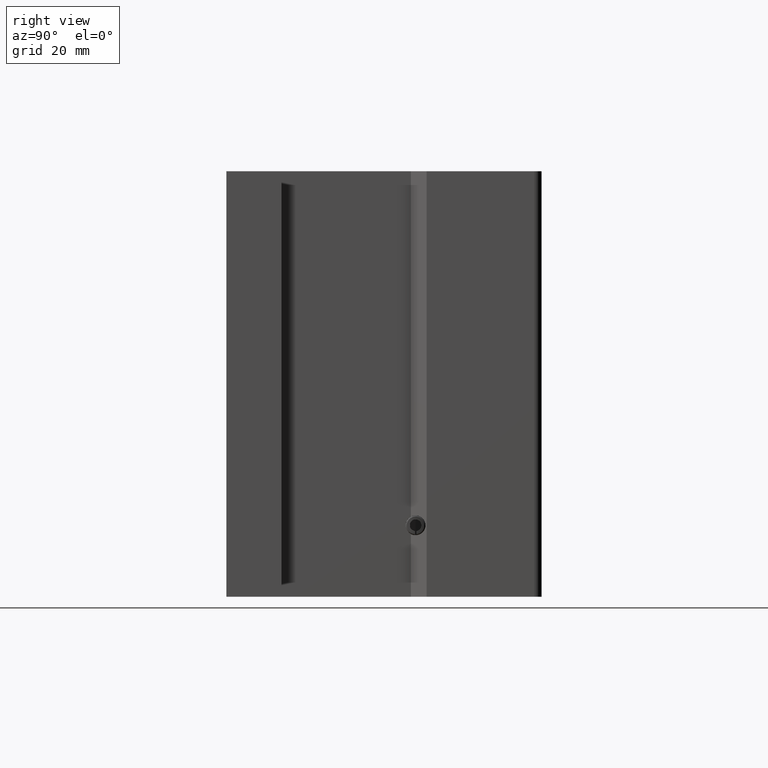
[diagram: clean part render]
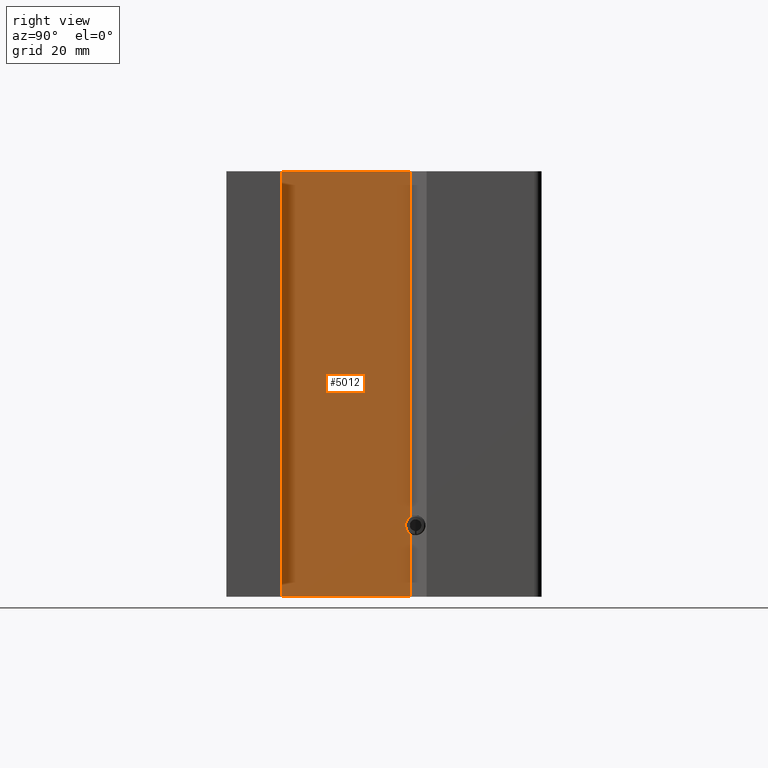
[diagram: same view with one face highlighted and labeled with its STEP entity id]
A machine part, right view. The second image highlights one B-rep face of the part: STEP entity #5012.
In plain terms, the highlighted planar face has unit normal (-1, 0, 0).
Its self-contained STEP definition (entity closure, byte-faithful):
#43 = VERTEX_POINT ( 'NONE', #3040 ) ;
#103 = LINE ( 'NONE', #2383, #3484 ) ;
#379 = LINE ( 'NONE', #4270, #7149 ) ;
#436 = EDGE_CURVE ( 'NONE', #6733, #43, #103, .T. ) ;
#1206 = VECTOR ( 'NONE', #3571, 39.37007874015748143 ) ;
#1226 = EDGE_CURVE ( 'NONE', #5859, #4932, #379, .T. ) ;
#1517 = DIRECTION ( 'NONE',  ( -1.000000000000000000, 0.000000000000000000, 0.000000000000000000 ) ) ;
#1538 = CARTESIAN_POINT ( 'NONE',  ( 1.499999999999999778, 0.000000000000000000, -1.121249999999999858 ) ) ;
#1737 = VECTOR ( 'NONE', #4206, 39.37007874015748143 ) ;
#1741 = DIRECTION ( 'NONE',  ( 0.000000000000000000, -1.000000000000000000, 0.000000000000000000 ) ) ;
#2383 = CARTESIAN_POINT ( 'NONE',  ( 1.499999999999999778, -0.03700000000000085859, -2.732006582075958256 ) ) ;
#2508 = FACE_OUTER_BOUND ( 'NONE', #3326, .T. ) ;
#2741 = CARTESIAN_POINT ( 'NONE',  ( 1.499999999999999778, -1.062999999999999501, -1.687500000000000000 ) ) ;
#2961 = DIRECTION ( 'NONE',  ( 0.000000000000000000, 0.000000000000000000, 1.000000000000000000 ) ) ;
#3016 = EDGE_CURVE ( 'NONE', #6733, #5181, #5240, .T. ) ;
#3040 = CARTESIAN_POINT ( 'NONE',  ( 1.499999999999999778, -0.03700000000000085859, -1.190483301235748970 ) ) ;
#3043 = CARTESIAN_POINT ( 'NONE',  ( 1.499999999999999778, 0.000000000000000000, -1.687500000000000000 ) ) ;
#3326 = EDGE_LOOP ( 'NONE', ( #3766, #7182, #6277, #4316, #4477, #7230 ) ) ;
#3484 = VECTOR ( 'NONE', #2961, 39.37007874015748143 ) ;
#3490 = CARTESIAN_POINT ( 'NONE',  ( 1.499999999999999778, -1.062999999999999501, -2.364883938398306462 ) ) ;
#3520 = LINE ( 'NONE', #3490, #1737 ) ;
#3571 = DIRECTION ( 'NONE',  ( 0.000000000000000000, 0.000000000000000000, 1.000000000000000000 ) ) ;
#3670 = AXIS2_PLACEMENT_3D ( 'NONE', #5875, #1517, #3770 ) ;
#3766 = ORIENTED_EDGE ( 'NONE', *, *, #5394, .F. ) ;
#3770 = DIRECTION ( 'NONE',  ( 0.000000000000000000, 0.000000000000000000, 1.000000000000000000 ) ) ;
#4206 = DIRECTION ( 'NONE',  ( 0.000000000000000000, 0.000000000000000000, 1.000000000000000000 ) ) ;
#4270 = CARTESIAN_POINT ( 'NONE',  ( 1.499999999999999778, 0.000000000000000000, 1.687500000000000000 ) ) ;
#4316 = ORIENTED_EDGE ( 'NONE', *, *, #7261, .F. ) ;
#4477 = ORIENTED_EDGE ( 'NONE', *, *, #3016, .F. ) ;
#4630 = CARTESIAN_POINT ( 'NONE',  ( 1.499999999999999778, -0.03700000000000085859, 1.687500000000000000 ) ) ;
#4731 = AXIS2_PLACEMENT_3D ( 'NONE', #1538, #6022, #4985 ) ;
#4858 = CIRCLE ( 'NONE', #4731, 0.07849999999999958400 ) ;
#4932 = VERTEX_POINT ( 'NONE', #6297 ) ;
#4985 = DIRECTION ( 'NONE',  ( 0.000000000000000000, 0.000000000000000000, 1.000000000000000000 ) ) ;
#5012 = ADVANCED_FACE ( 'NONE', ( #2508 ), #6549, .F. ) ;
#5181 = VERTEX_POINT ( 'NONE', #2741 ) ;
#5207 = CARTESIAN_POINT ( 'NONE',  ( 1.499999999999999778, -0.03700000000000085859, -2.732006582075958256 ) ) ;
#5240 = LINE ( 'NONE', #3043, #5993 ) ;
#5332 = CARTESIAN_POINT ( 'NONE',  ( 1.499999999999999778, -0.03700000000000085859, -1.052016698764252078 ) ) ;
#5394 = EDGE_CURVE ( 'NONE', #5614, #43, #4858, .T. ) ;
#5614 = VERTEX_POINT ( 'NONE', #5332 ) ;
#5758 = CARTESIAN_POINT ( 'NONE',  ( 1.499999999999999778, -0.03700000000000056022, -1.687500000000000000 ) ) ;
#5763 = LINE ( 'NONE', #5207, #1206 ) ;
#5859 = VERTEX_POINT ( 'NONE', #4630 ) ;
#5875 = CARTESIAN_POINT ( 'NONE',  ( 1.499999999999999778, 0.000000000000000000, -1.687500000000000000 ) ) ;
#5993 = VECTOR ( 'NONE', #1741, 39.37007874015748143 ) ;
#6022 = DIRECTION ( 'NONE',  ( 1.000000000000000000, -0.000000000000000000, -0.000000000000000000 ) ) ;
#6253 = EDGE_CURVE ( 'NONE', #5614, #5859, #5763, .T. ) ;
#6277 = ORIENTED_EDGE ( 'NONE', *, *, #1226, .T. ) ;
#6297 = CARTESIAN_POINT ( 'NONE',  ( 1.499999999999999778, -1.062999999999999501, 1.687500000000000000 ) ) ;
#6549 = PLANE ( 'NONE',  #3670 ) ;
#6611 = DIRECTION ( 'NONE',  ( 0.000000000000000000, -1.000000000000000000, 0.000000000000000000 ) ) ;
#6733 = VERTEX_POINT ( 'NONE', #5758 ) ;
#7149 = VECTOR ( 'NONE', #6611, 39.37007874015748143 ) ;
#7182 = ORIENTED_EDGE ( 'NONE', *, *, #6253, .T. ) ;
#7230 = ORIENTED_EDGE ( 'NONE', *, *, #436, .T. ) ;
#7261 = EDGE_CURVE ( 'NONE', #5181, #4932, #3520, .T. ) ;